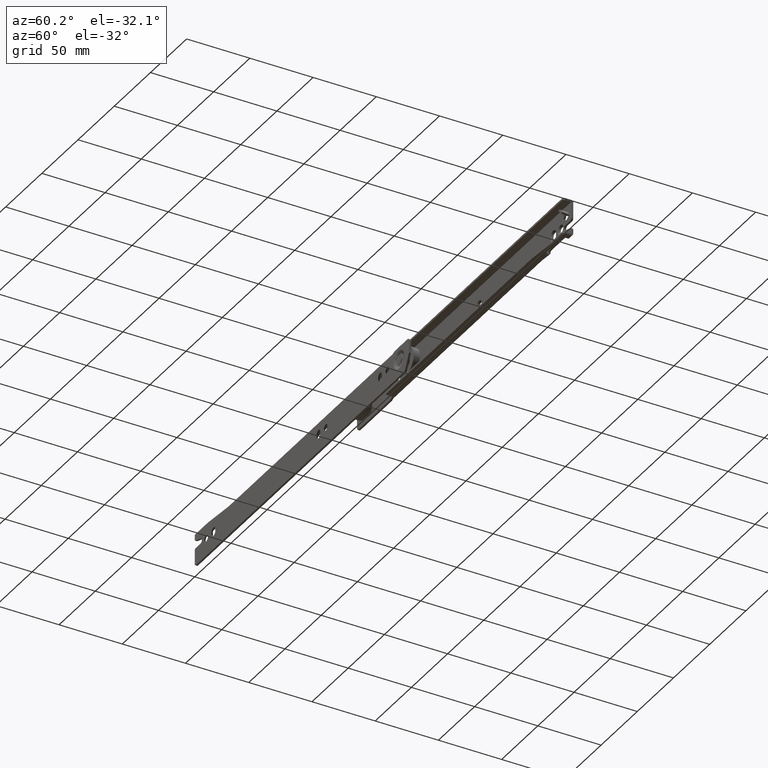
[diagram: clean part render]
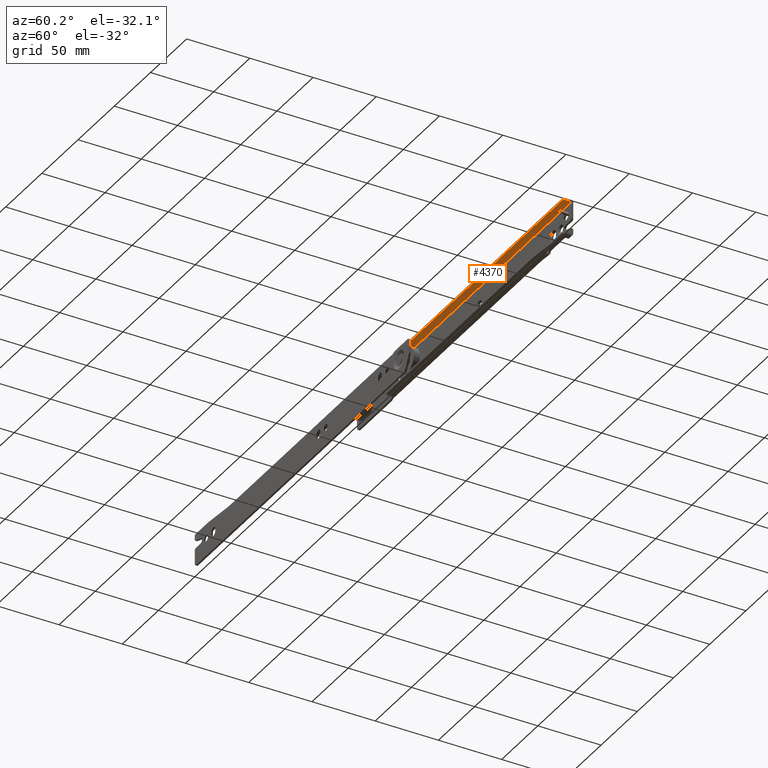
[diagram: same view with one face highlighted and labeled with its STEP entity id]
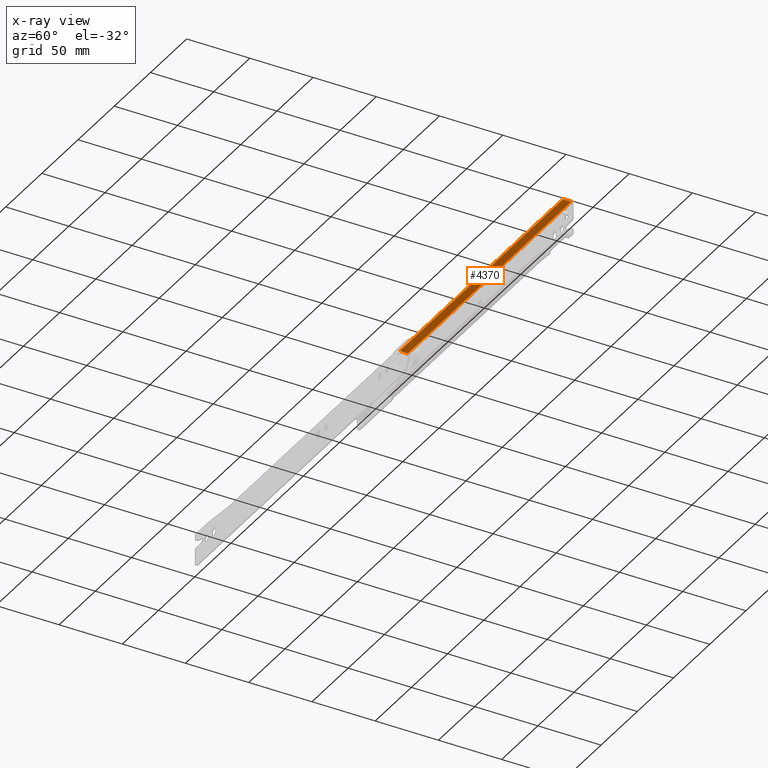
[diagram: x-ray of the same camera — body ghosted, the highlighted face saturated]
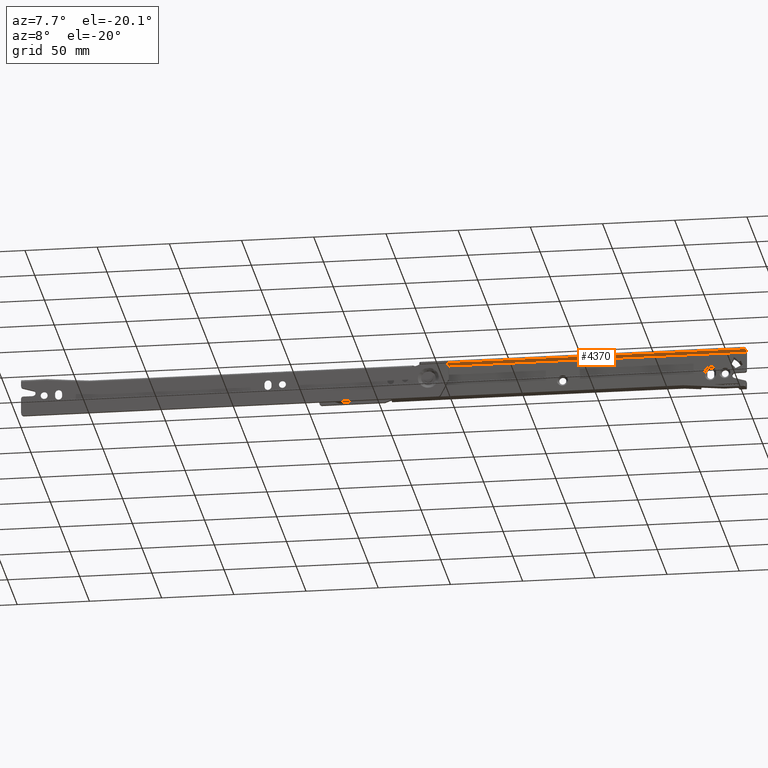
[diagram: same view with one face highlighted and labeled with its STEP entity id]
A machine part, auxiliary view. The second image highlights one B-rep face of the part: STEP entity #4370.
The next image is the same camera in x-ray: the body ghosted, the highlighted face saturated — about 0% of this face is hidden behind the body in this view.
A second angle (auxiliary view) of the same face is appended — the face is thin or edge-on in the first view.
In plain terms, the highlighted face is a freeform B-spline surface patch.
Its self-contained STEP definition (entity closure, byte-faithful):
#2485=CARTESIAN_POINT('',(275.0,5.999999999999770,26.0));
#2486=VERTEX_POINT('',#2485);
#2492=CARTESIAN_POINT('',(276.500000000000000,4.499999999999725,26.0));
#2493=VERTEX_POINT('',#2492);
#2494=CARTESIAN_POINT('',(276.500000000000000,4.499999999999770,26.0));
#2495=CARTESIAN_POINT('',(275.000000000000060,4.499999999999769,26.000000000000004));
#2496=CARTESIAN_POINT('',(275.0,5.999999999999770,26.0));
#2504=(BOUNDED_CURVE()B_SPLINE_CURVE(2,(#2494,#2495,#2496),.UNSPECIFIED.,.F.,.U.)CURVE()GEOMETRIC_REPRESENTATION_ITEM()QUASI_UNIFORM_CURVE()RATIONAL_B_SPLINE_CURVE((1.0,0.707106781186548,1.0))REPRESENTATION_ITEM(''));
#2505=EDGE_CURVE('',#2493,#2486,#2504,.T.);
#2750=CARTESIAN_POINT('',(275.0,11.0,26.0));
#2751=VERTEX_POINT('',#2750);
#3997=CARTESIAN_POINT('',(501.0,5.999999999999780,26.0));
#3998=VERTEX_POINT('',#3997);
#3999=CARTESIAN_POINT('',(499.500000000000000,4.499999999999725,26.0));
#4000=VERTEX_POINT('',#3999);
#4001=CARTESIAN_POINT('',(501.0,5.999999999999770,26.0));
#4002=CARTESIAN_POINT('',(500.999999999999890,4.499999999999769,26.000000000000004));
#4003=CARTESIAN_POINT('',(499.500000000000000,4.499999999999770,26.0));
#4011=(BOUNDED_CURVE()B_SPLINE_CURVE(2,(#4001,#4002,#4003),.UNSPECIFIED.,.F.,.U.)CURVE()GEOMETRIC_REPRESENTATION_ITEM()QUASI_UNIFORM_CURVE()RATIONAL_B_SPLINE_CURVE((1.0,0.707106781186548,1.0))REPRESENTATION_ITEM(''));
#4012=EDGE_CURVE('',#3998,#4000,#4011,.T.);
#4334=CARTESIAN_POINT('',(276.500000000000000,4.499999999999725,26.0));
#4335=CARTESIAN_POINT('',(499.500000000000000,4.499999999999725,26.0));
#4336=QUASI_UNIFORM_CURVE('',1,(#4334,#4335),.UNSPECIFIED.,.F.,.U.);
#4337=EDGE_CURVE('',#2493,#4000,#4336,.T.);
#4343=CARTESIAN_POINT('',(263.711300438031910,4.175325012597972,26.0));
#4344=CARTESIAN_POINT('',(512.288705623760620,4.175325012597972,26.0));
#4345=CARTESIAN_POINT('',(263.711300438031910,11.324675161745340,26.0));
#4346=CARTESIAN_POINT('',(512.288705623760620,11.324675161745340,26.0));
#4347=B_SPLINE_SURFACE_WITH_KNOTS('',1,1,((#4343,#4345),(#4344,#4346)),.UNSPECIFIED.,.F.,.F.,.U.,(2,2),(2,2),(0.0,248.577405185728790),(0.0,7.149350149147366),.UNSPECIFIED.);
#4348=ORIENTED_EDGE('',*,*,#4337,.F.);
#4349=ORIENTED_EDGE('',*,*,#2505,.T.);
#4350=CARTESIAN_POINT('',(275.0,5.999999999999770,26.0));
#4351=CARTESIAN_POINT('',(275.0,11.0,26.0));
#4352=QUASI_UNIFORM_CURVE('',1,(#4350,#4351),.UNSPECIFIED.,.F.,.U.);
#4353=EDGE_CURVE('',#2486,#2751,#4352,.T.);
#4354=ORIENTED_EDGE('',*,*,#4353,.T.);
#4355=CARTESIAN_POINT('',(501.0,11.0,26.0));
#4356=VERTEX_POINT('',#4355);
#4357=CARTESIAN_POINT('',(275.0,11.0,26.0));
#4358=CARTESIAN_POINT('',(501.0,11.0,26.0));
#4359=QUASI_UNIFORM_CURVE('',1,(#4357,#4358),.UNSPECIFIED.,.F.,.U.);
#4360=EDGE_CURVE('',#2751,#4356,#4359,.T.);
#4361=ORIENTED_EDGE('',*,*,#4360,.T.);
#4362=CARTESIAN_POINT('',(501.0,5.999999999999780,26.0));
#4363=CARTESIAN_POINT('',(501.0,11.0,26.0));
#4364=QUASI_UNIFORM_CURVE('',1,(#4362,#4363),.UNSPECIFIED.,.F.,.U.);
#4365=EDGE_CURVE('',#3998,#4356,#4364,.T.);
#4366=ORIENTED_EDGE('',*,*,#4365,.F.);
#4367=ORIENTED_EDGE('',*,*,#4012,.T.);
#4368=EDGE_LOOP('',(#4348,#4349,#4354,#4361,#4366,#4367));
#4369=FACE_OUTER_BOUND('',#4368,.T.);
#4370=ADVANCED_FACE('',(#4369),#4347,.F.);